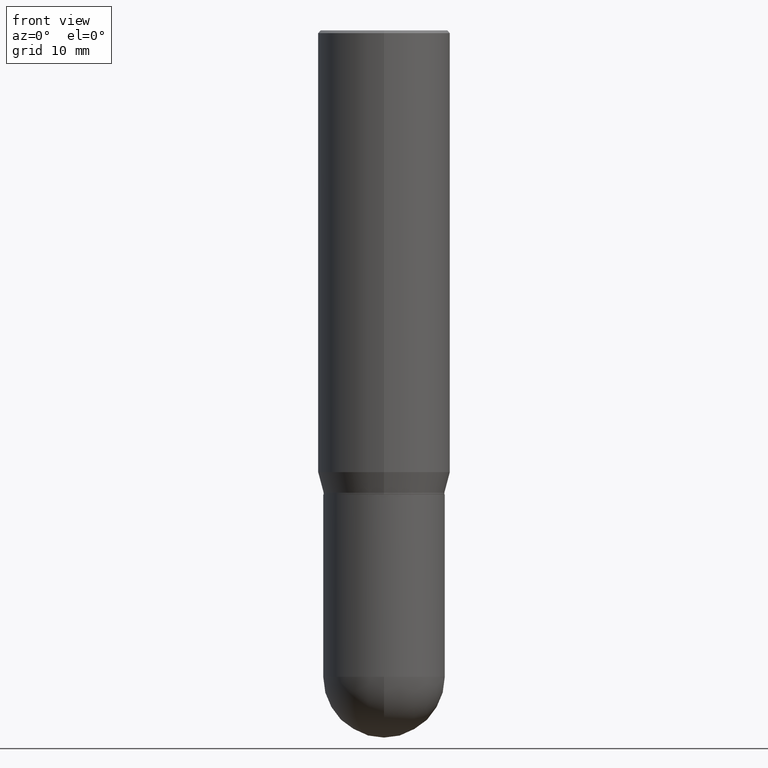
[diagram: clean part render]
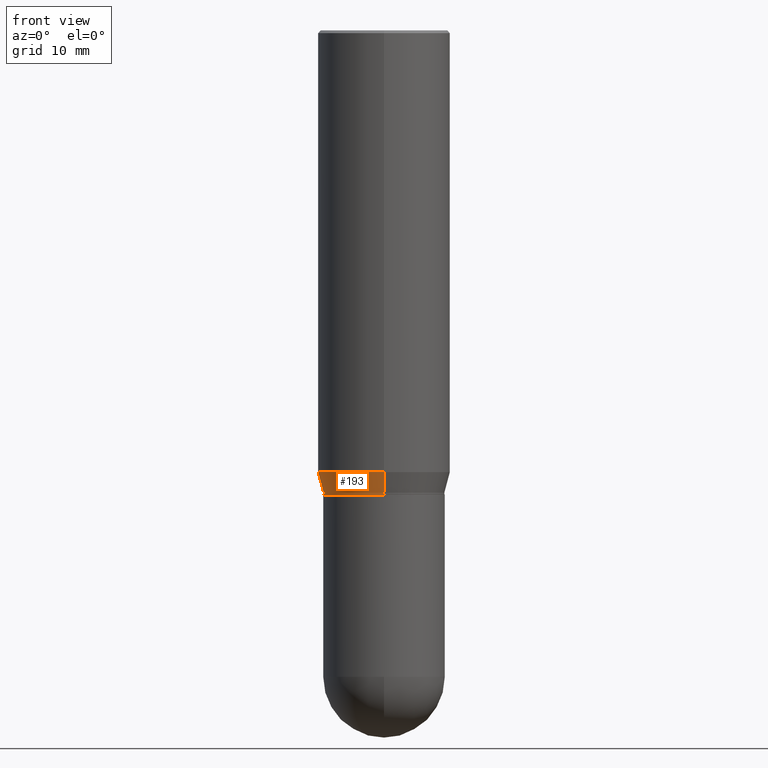
[diagram: same view with one face highlighted and labeled with its STEP entity id]
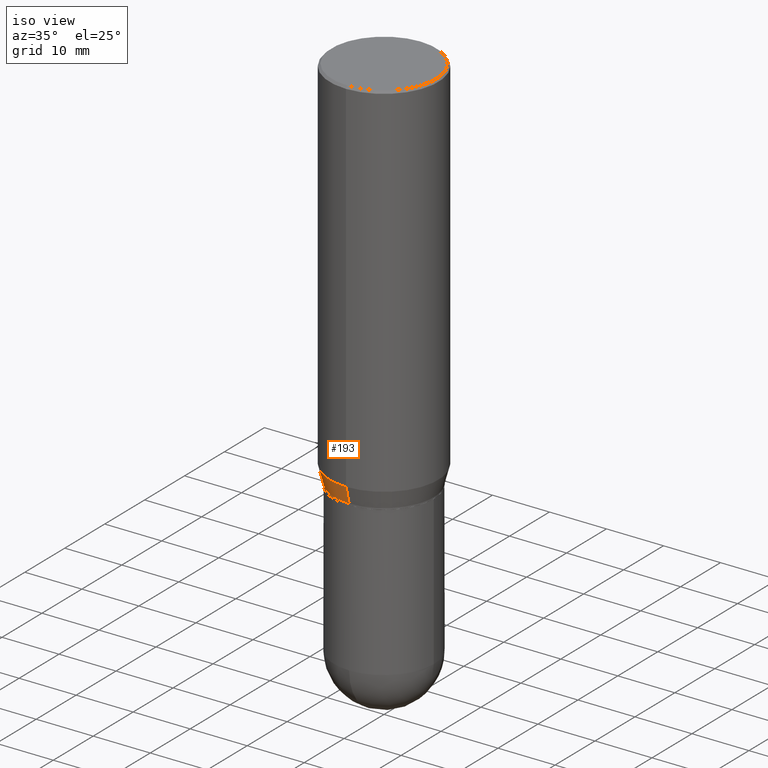
[diagram: same view with one face highlighted and labeled with its STEP entity id]
A machine part, front view. The second image highlights one B-rep face of the part: STEP entity #193.
A second angle (iso view) of the same face is appended — the face is thin or edge-on in the first view.
In plain terms, the highlighted conical surface has half-angle 15 deg.
Its self-contained STEP definition (entity closure, byte-faithful):
#3 = VERTEX_POINT ( 'NONE', #365 ) ;
#5 = CONICAL_SURFACE ( 'NONE', #431, 0.3437500000000002776, 0.2617993877991510177 ) ;
#22 = CIRCLE ( 'NONE', #149, 0.3437500000000002776 ) ;
#24 = CARTESIAN_POINT ( 'NONE',  ( 2.553512956637922757E-15, 0.3437499999999911182, -2.615000000000001545 ) ) ;
#38 = VERTEX_POINT ( 'NONE', #349 ) ;
#51 = DIRECTION ( 'NONE',  ( -2.447249651675141421E-29, 3.488931066742028009E-15, 1.000000000000000000 ) ) ;
#55 = VERTEX_POINT ( 'NONE', #275 ) ;
#61 = DIRECTION ( 'NONE',  ( -6.982962677686265922E-15, -1.000000000000000000, 3.178877665354776508E-15 ) ) ;
#118 = ORIENTED_EDGE ( 'NONE', *, *, #347, .T. ) ;
#128 = AXIS2_PLACEMENT_3D ( 'NONE', #448, #51, #402 ) ;
#149 = AXIS2_PLACEMENT_3D ( 'NONE', #260, #181, #61 ) ;
#173 = DIRECTION ( 'NONE',  ( -6.982962677686265922E-15, -1.000000000000000000, 3.178877665354776508E-15 ) ) ;
#181 = DIRECTION ( 'NONE',  ( -2.447249651675141421E-29, 3.488931066742028009E-15, 1.000000000000000000 ) ) ;
#192 = VECTOR ( 'NONE', #494, 39.37007874015748143 ) ;
#193 = ADVANCED_FACE ( 'NONE', ( #204 ), #5, .T. ) ;
#204 = FACE_OUTER_BOUND ( 'NONE', #342, .T. ) ;
#213 = CARTESIAN_POINT ( 'NONE',  ( 6.399557839130496285E-29, -9.123554739530404168E-15, -2.615000000000000213 ) ) ;
#216 = EDGE_CURVE ( 'NONE', #38, #3, #388, .T. ) ;
#238 = DIRECTION ( 'NONE',  ( -1.807323732225335267E-15, -0.2588190451025189631, 0.9659258262890687563 ) ) ;
#240 = ORIENTED_EDGE ( 'NONE', *, *, #439, .F. ) ;
#260 = CARTESIAN_POINT ( 'NONE',  ( 6.399557839130496285E-29, -9.123554739530404168E-15, -2.615000000000000213 ) ) ;
#275 = CARTESIAN_POINT ( 'NONE',  ( -2.400393420454591862E-15, -0.3437500000000094369, -2.614999999999999325 ) ) ;
#306 = LINE ( 'NONE', #459, #490 ) ;
#342 = EDGE_LOOP ( 'NONE', ( #240, #118, #476, #424 ) ) ;
#347 = EDGE_CURVE ( 'NONE', #395, #55, #22, .T. ) ;
#349 = CARTESIAN_POINT ( 'NONE',  ( 2.664535259100436439E-15, 0.3749999999999912847, -2.498373412263475757 ) ) ;
#365 = CARTESIAN_POINT ( 'NONE',  ( -2.618611004132288880E-15, -0.3750000000000087708, -2.498373412263473536 ) ) ;
#388 = CIRCLE ( 'NONE', #128, 0.3750000000000000555 ) ;
#395 = VERTEX_POINT ( 'NONE', #24 ) ;
#402 = DIRECTION ( 'NONE',  ( -6.982962677686265922E-15, -1.000000000000000000, 2.913971193241880372E-15 ) ) ;
#424 = ORIENTED_EDGE ( 'NONE', *, *, #216, .F. ) ;
#431 = AXIS2_PLACEMENT_3D ( 'NONE', #213, #486, #173 ) ;
#439 = EDGE_CURVE ( 'NONE', #395, #38, #499, .T. ) ;
#448 = CARTESIAN_POINT ( 'NONE',  ( 6.114143462916222679E-29, -8.716652614368324829E-15, -2.498373412263474425 ) ) ;
#459 = CARTESIAN_POINT ( 'NONE',  ( -2.400393420454591862E-15, -0.3437500000000094369, -2.614999999999999325 ) ) ;
#460 = EDGE_CURVE ( 'NONE', #55, #3, #306, .T. ) ;
#476 = ORIENTED_EDGE ( 'NONE', *, *, #460, .T. ) ;
#486 = DIRECTION ( 'NONE',  ( -2.447249651675141421E-29, 3.488931066742028009E-15, 1.000000000000000000 ) ) ;
#490 = VECTOR ( 'NONE', #238, 39.37007874015748854 ) ;
#494 = DIRECTION ( 'NONE',  ( 1.839019923739605443E-15, 0.2588190451025256800, 0.9659258262890669799 ) ) ;
#495 = CARTESIAN_POINT ( 'NONE',  ( 2.442490654175409864E-15, 0.3437499999999911182, -2.615000000000001545 ) ) ;
#499 = LINE ( 'NONE', #495, #192 ) ;